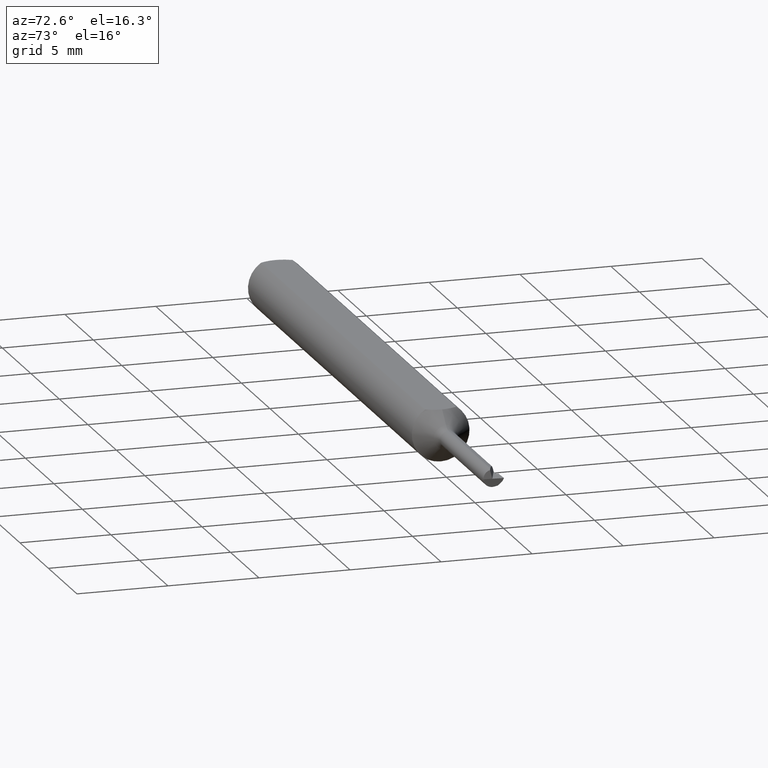
[diagram: clean part render]
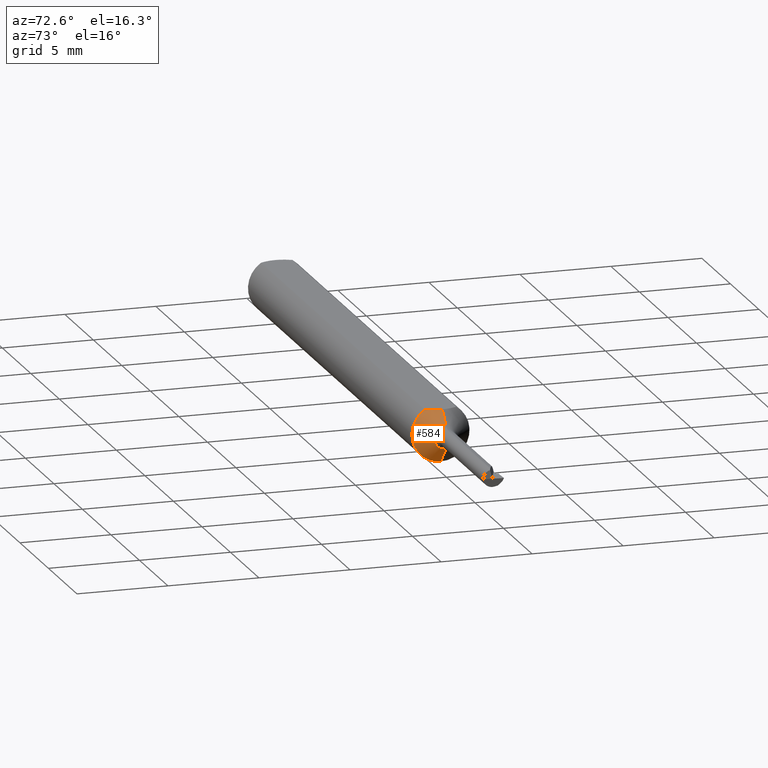
[diagram: same view with one face highlighted and labeled with its STEP entity id]
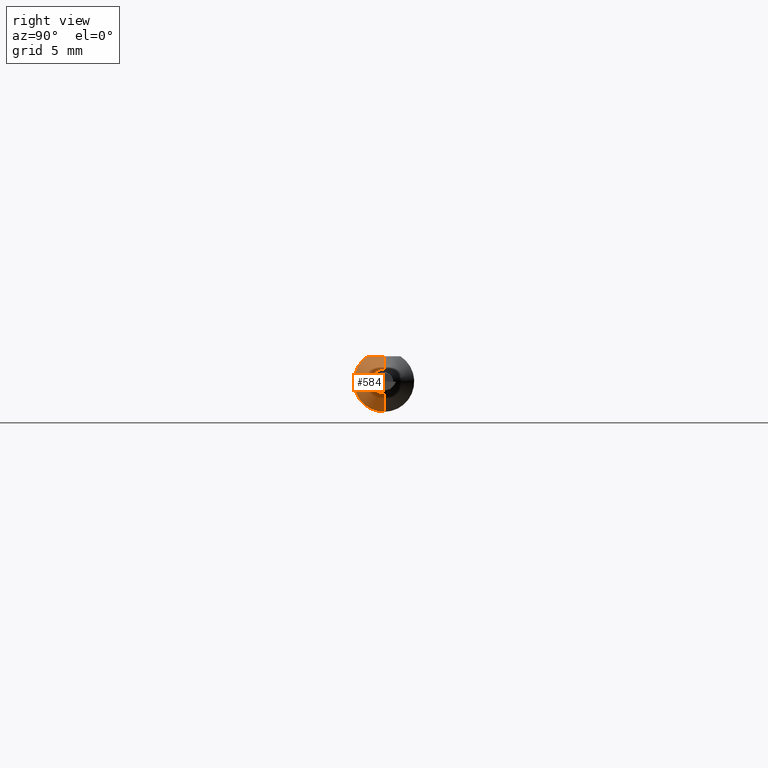
[diagram: same view with one face highlighted and labeled with its STEP entity id]
A machine part, auxiliary view. The second image highlights one B-rep face of the part: STEP entity #584.
A second angle (right view) of the same face is appended — the face is thin or edge-on in the first view.
In plain terms, the highlighted conical surface has half-angle 45 deg.
Its self-contained STEP definition (entity closure, byte-faithful):
#30 = CIRCLE ( 'NONE', #312, 0.06235000000000000264 ) ;
#31 = DIRECTION ( 'NONE',  ( -1.000000000000000000, -0.000000000000000000, -0.000000000000000000 ) ) ;
#34 = EDGE_LOOP ( 'NONE', ( #71, #465, #624, #271, #189 ) ) ;
#38 = CARTESIAN_POINT ( 'NONE',  ( 1.177677669529663573, 3.162323435702260084E-18, -0.02582233047033637152 ) ) ;
#44 = CONICAL_SURFACE ( 'NONE', #66, 0.02582233047033637499, 0.7853981633974507215 ) ;
#66 = AXIS2_PLACEMENT_3D ( 'NONE', #368, #31, #538 ) ;
#71 = ORIENTED_EDGE ( 'NONE', *, *, #319, .F. ) ;
#73 = LINE ( 'NONE', #123, #437 ) ;
#75 = EDGE_CURVE ( 'NONE', #522, #516, #30, .T. ) ;
#86 = DIRECTION ( 'NONE',  ( -0.7071067811865457964, 0.000000000000000000, 0.7071067811865492381 ) ) ;
#89 = CARTESIAN_POINT ( 'NONE',  ( 1.151149999999999896, -0.005924734429433318843, 0.05235000000000002152 ) ) ;
#123 = CARTESIAN_POINT ( 'NONE',  ( 1.177677669529663573, 3.162323435702260854E-18, -0.02582233047033637499 ) ) ;
#129 = CARTESIAN_POINT ( 'NONE',  ( 1.177677669529663573, 0.000000000000000000, 0.02582233047033637499 ) ) ;
#163 = CARTESIAN_POINT ( 'NONE',  ( 1.141150000000000109, 0.000000000000000000, 0.000000000000000000 ) ) ;
#188 = CARTESIAN_POINT ( 'NONE',  ( 1.144001488371463315, -0.02861778674340263381, 0.05235000000000002152 ) ) ;
#189 = ORIENTED_EDGE ( 'NONE', *, *, #75, .F. ) ;
#241 = CARTESIAN_POINT ( 'NONE',  ( 1.146482645487523655, -0.02321992653401852222, 0.05235000000000001458 ) ) ;
#271 = ORIENTED_EDGE ( 'NONE', *, *, #434, .T. ) ;
#279 = FACE_OUTER_BOUND ( 'NONE', #34, .T. ) ;
#283 = CARTESIAN_POINT ( 'NONE',  ( 1.151150000000000118, -1.477724062875314838E-21, 0.05235000000000001458 ) ) ;
#312 = AXIS2_PLACEMENT_3D ( 'NONE', #163, #442, #592 ) ;
#319 = EDGE_CURVE ( 'NONE', #414, #522, #73, .T. ) ;
#329 = CARTESIAN_POINT ( 'NONE',  ( 1.177677669529663573, 0.000000000000000000, 0.000000000000000000 ) ) ;
#352 = DIRECTION ( 'NONE',  ( -0.7071067811865457964, 8.659560562354953812E-17, -0.7071067811865492381 ) ) ;
#357 = EDGE_CURVE ( 'NONE', #414, #508, #373, .T. ) ;
#368 = CARTESIAN_POINT ( 'NONE',  ( 1.177677669529663573, 0.000000000000000000, 0.000000000000000000 ) ) ;
#373 = CIRCLE ( 'NONE', #560, 0.02582233047033637499 ) ;
#374 = CARTESIAN_POINT ( 'NONE',  ( 1.150078879331740023, -0.01191647624495716616, 0.05235000000000002152 ) ) ;
#384 = VERTEX_POINT ( 'NONE', #535 ) ;
#401 = B_SPLINE_CURVE_WITH_KNOTS ( 'NONE', 3,
 ( #283, #89, #374, #241, #188, #416 ),
 .UNSPECIFIED., .F., .F.,
 ( 4, 2, 4 ),
 ( 0.002916663230282895512, 0.003365861382119353894, 0.003815059533955811842 ),
 .UNSPECIFIED. ) ;
#414 = VERTEX_POINT ( 'NONE', #38 ) ;
#416 = CARTESIAN_POINT ( 'NONE',  ( 1.141150000000000109, -0.03386738844375220686, 0.05235000000000000070 ) ) ;
#423 = DIRECTION ( 'NONE',  ( -1.000000000000000000, -0.000000000000000000, -0.000000000000000000 ) ) ;
#429 = EDGE_CURVE ( 'NONE', #508, #384, #626, .T. ) ;
#434 = EDGE_CURVE ( 'NONE', #384, #516, #401, .T. ) ;
#437 = VECTOR ( 'NONE', #352, 39.37007874015748143 ) ;
#442 = DIRECTION ( 'NONE',  ( -1.000000000000000000, -0.000000000000000000, -0.000000000000000000 ) ) ;
#465 = ORIENTED_EDGE ( 'NONE', *, *, #357, .T. ) ;
#508 = VERTEX_POINT ( 'NONE', #533 ) ;
#516 = VERTEX_POINT ( 'NONE', #587 ) ;
#522 = VERTEX_POINT ( 'NONE', #594 ) ;
#533 = CARTESIAN_POINT ( 'NONE',  ( 1.177677669529663573, 0.000000000000000000, 0.02582233047033637152 ) ) ;
#535 = CARTESIAN_POINT ( 'NONE',  ( 1.151150000000000118, -1.477724062875314838E-21, 0.05235000000000001458 ) ) ;
#538 = DIRECTION ( 'NONE',  ( 0.000000000000000000, 0.000000000000000000, 1.000000000000000000 ) ) ;
#560 = AXIS2_PLACEMENT_3D ( 'NONE', #329, #423, #579 ) ;
#579 = DIRECTION ( 'NONE',  ( 0.000000000000000000, 0.000000000000000000, 1.000000000000000000 ) ) ;
#584 = ADVANCED_FACE ( 'NONE', ( #279 ), #44, .T. ) ;
#587 = CARTESIAN_POINT ( 'NONE',  ( 1.141150000000000109, -0.03386738844375220686, 0.05235000000000000070 ) ) ;
#592 = DIRECTION ( 'NONE',  ( 0.000000000000000000, 0.000000000000000000, 1.000000000000000000 ) ) ;
#594 = CARTESIAN_POINT ( 'NONE',  ( 1.141150000000000109, 7.635672792683746671E-18, -0.06235000000000000264 ) ) ;
#603 = VECTOR ( 'NONE', #86, 39.37007874015748143 ) ;
#624 = ORIENTED_EDGE ( 'NONE', *, *, #429, .T. ) ;
#626 = LINE ( 'NONE', #129, #603 ) ;